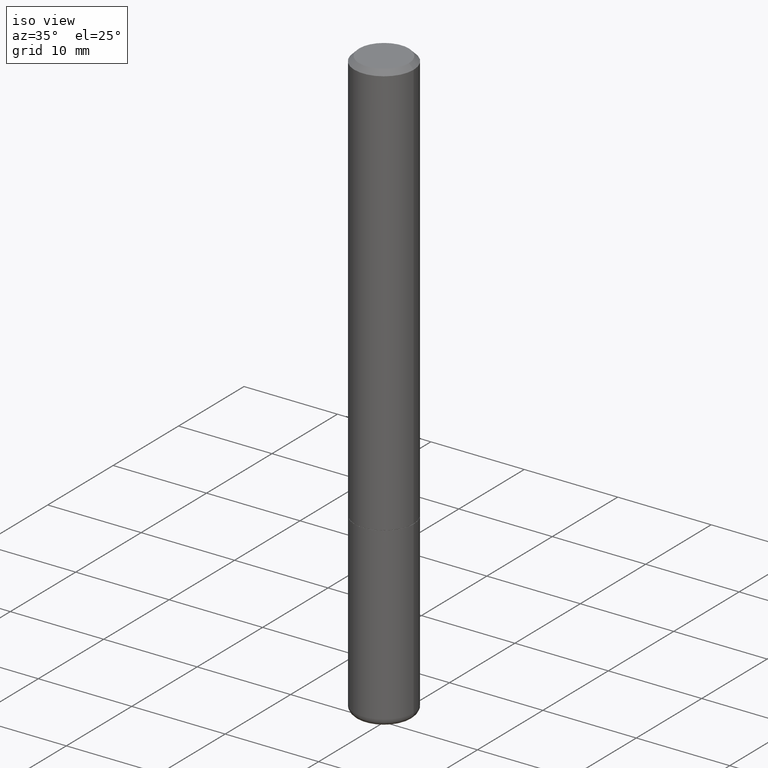
[diagram: clean part render]
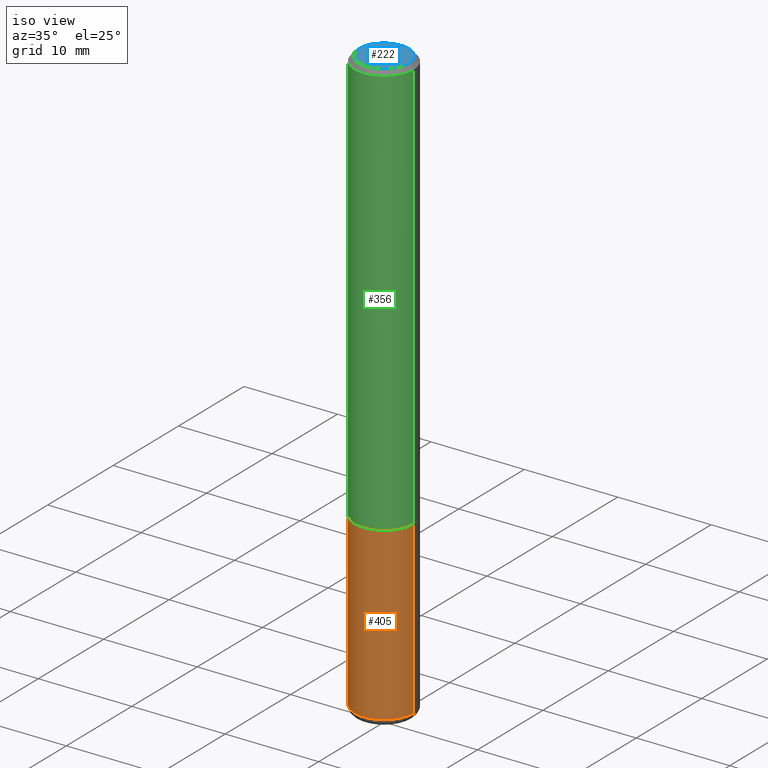
[diagram: same view with three faces highlighted in distinct colors, each labeled with its STEP entity id]
A machine part, iso view with three faces highlighted in distinct colors.
Their STEP definitions:

[orange] entity #405 — the highlighted cylindrical surface (edge-blend (fillet) strip) has radius 3.175 mm, axis along (-0, 0, 1).
#14 = CARTESIAN_POINT ( 'NONE',  ( 6.040307951277287977E-29, -8.623958906942569995E-15, -2.470000000000000195 ) ) ;
#16 = CARTESIAN_POINT ( 'NONE',  ( 4.279570410823989044E-29, -6.110092342975505460E-15, -1.750000000000000222 ) ) ;
#18 = EDGE_CURVE ( 'NONE', #108, #75, #74, .T. ) ;
#23 = CARTESIAN_POINT ( 'NONE',  ( -0.1250000000000000000, -6.478847205258913284E-15, -1.750000000000000222 ) ) ;
#34 = AXIS2_PLACEMENT_3D ( 'NONE', #14, #105, #401 ) ;
#45 = VERTEX_POINT ( 'NONE', #23 ) ;
#63 = AXIS2_PLACEMENT_3D ( 'NONE', #16, #171, #272 ) ;
#66 = LINE ( 'NONE', #162, #106 ) ;
#74 = CIRCLE ( 'NONE', #34, 0.1250000000000000000 ) ;
#75 = VERTEX_POINT ( 'NONE', #378 ) ;
#105 = DIRECTION ( 'NONE',  ( -2.445468806185136597E-29, 3.491481338843145583E-15, 1.000000000000000000 ) ) ;
#106 = VECTOR ( 'NONE', #223, 39.37007874015748143 ) ;
#108 = VERTEX_POINT ( 'NONE', #383 ) ;
#110 = FACE_OUTER_BOUND ( 'NONE', #305, .T. ) ;
#123 = LINE ( 'NONE', #320, #161 ) ;
#157 = EDGE_CURVE ( 'NONE', #45, #315, #412, .T. ) ;
#162 = CARTESIAN_POINT ( 'NONE',  ( 0.1250000000000000000, -8.728703347107833388E-16, 6.095220969744919741E-30 ) ) ;
#161 = VECTOR ( 'NONE', #379, 39.37007874015748143 ) ;
#171 = DIRECTION ( 'NONE',  ( -2.445468806185136597E-29, 3.491481338843145583E-15, 1.000000000000000000 ) ) ;
#205 = CYLINDRICAL_SURFACE ( 'NONE', #404, 0.1250000000000000000 ) ;
#223 = DIRECTION ( 'NONE',  ( -2.445468806185136877E-29, 3.491481338843145188E-15, 1.000000000000000000 ) ) ;
#234 = EDGE_CURVE ( 'NONE', #75, #315, #66, .T. ) ;
#247 = ORIENTED_EDGE ( 'NONE', *, *, #157, .F. ) ;
#272 = DIRECTION ( 'NONE',  ( 1.000000000000000000, -6.982962677686262766E-15, 0.000000000000000000 ) ) ;
#305 = EDGE_LOOP ( 'NONE', ( #406, #393, #409, #247 ) ) ;
#315 = VERTEX_POINT ( 'NONE', #330 ) ;
#320 = CARTESIAN_POINT ( 'NONE',  ( -0.1250000000000000000, 8.881784197001252323E-16, -6.148668862818632227E-30 ) ) ;
#330 = CARTESIAN_POINT ( 'NONE',  ( 0.1250000000000000000, -6.982962677686288010E-15, -1.750000000000000222 ) ) ;
#331 = DIRECTION ( 'NONE',  ( -2.445468806185136597E-29, 3.491481338843145583E-15, 1.000000000000000000 ) ) ;
#369 = EDGE_CURVE ( 'NONE', #108, #45, #123, .T. ) ;
#373 = CARTESIAN_POINT ( 'NONE',  ( 0.000000000000000000, 0.000000000000000000, 0.000000000000000000 ) ) ;
#378 = CARTESIAN_POINT ( 'NONE',  ( 0.1249999999999999861, -9.496829241653354912E-15, -2.470000000000000195 ) ) ;
#379 = DIRECTION ( 'NONE',  ( -2.445468806185136877E-29, 3.491481338843145188E-15, 1.000000000000000000 ) ) ;
#383 = CARTESIAN_POINT ( 'NONE',  ( -0.1249999999999999861, -7.735780487242444763E-15, -2.470000000000000195 ) ) ;
#393 = ORIENTED_EDGE ( 'NONE', *, *, #18, .T. ) ;
#394 = DIRECTION ( 'NONE',  ( 1.000000000000000000, -6.982962677686266711E-15, 4.876176775795935793E-29 ) ) ;
#401 = DIRECTION ( 'NONE',  ( 1.000000000000000000, -6.982962677686270655E-15, 0.000000000000000000 ) ) ;
#404 = AXIS2_PLACEMENT_3D ( 'NONE', #373, #331, #394 ) ;
#405 = ADVANCED_FACE ( 'NONE', ( #110 ), #205, .T. ) ;
#406 = ORIENTED_EDGE ( 'NONE', *, *, #369, .F. ) ;
#409 = ORIENTED_EDGE ( 'NONE', *, *, #234, .T. ) ;
#412 = CIRCLE ( 'NONE', #63, 0.1250000000000000000 ) ;

[blue] entity #222 — the highlighted planar face has unit normal (0, -0, -1).
#15 = CARTESIAN_POINT ( 'NONE',  ( 1.252621697202263706E-45, -1.788411804456536750E-31, -5.122214988120493535E-17 ) ) ;
#27 = CIRCLE ( 'NONE', #344, 0.1050000000000000377 ) ;
#67 = DIRECTION ( 'NONE',  ( -2.445468806185136597E-29, 3.491481338843145583E-15, 1.000000000000000000 ) ) ;
#76 = VERTEX_POINT ( 'NONE', #221 ) ;
#98 = FACE_OUTER_BOUND ( 'NONE', #279, .T. ) ;
#115 = DIRECTION ( 'NONE',  ( 1.000000000000000000, -6.982962677686267499E-15, 4.874400871621236533E-29 ) ) ;
#120 = ORIENTED_EDGE ( 'NONE', *, *, #384, .T. ) ;
#131 = DIRECTION ( 'NONE',  ( 1.000000000000000000, -6.982962677686267499E-15, 4.874400871621236533E-29 ) ) ;
#181 = DIRECTION ( 'NONE',  ( 2.438088387897960049E-29, -3.491481338843145188E-15, -1.000000000000000000 ) ) ;
#187 = DIRECTION ( 'NONE',  ( -1.000000000000000000, 6.982962677686265922E-15, -4.876176775795935793E-29 ) ) ;
#208 = ORIENTED_EDGE ( 'NONE', *, *, #299, .T. ) ;
#221 = CARTESIAN_POINT ( 'NONE',  ( -0.1050000000000000377, 7.681258945454890818E-16, -5.122214988121018004E-17 ) ) ;
#222 = ADVANCED_FACE ( 'NONE', ( #98 ), #229, .F. ) ;
#229 = PLANE ( 'NONE',  #328 ) ;
#279 = EDGE_LOOP ( 'NONE', ( #120, #208 ) ) ;
#299 = EDGE_CURVE ( 'NONE', #371, #76, #310, .T. ) ;
#310 = CIRCLE ( 'NONE', #417, 0.1050000000000000377 ) ;
#328 = AXIS2_PLACEMENT_3D ( 'NONE', #357, #181, #187 ) ;
#335 = DIRECTION ( 'NONE',  ( -2.445468806185136597E-29, 3.491481338843145583E-15, 1.000000000000000000 ) ) ;
#344 = AXIS2_PLACEMENT_3D ( 'NONE', #15, #335, #115 ) ;
#351 = CARTESIAN_POINT ( 'NONE',  ( 0.1050000000000000377, -8.238720831321576644E-16, -5.122214988119949344E-17 ) ) ;
#357 = CARTESIAN_POINT ( 'NONE',  ( 7.332110811570581229E-16, 0.1050000000000000377, -3.922166155191328542E-16 ) ) ;
#360 = CARTESIAN_POINT ( 'NONE',  ( 1.252621697202263706E-45, -1.788411804456536750E-31, -5.122214988120493535E-17 ) ) ;
#371 = VERTEX_POINT ( 'NONE', #351 ) ;
#384 = EDGE_CURVE ( 'NONE', #76, #371, #27, .T. ) ;
#417 = AXIS2_PLACEMENT_3D ( 'NONE', #360, #67, #131 ) ;

[green] entity #356 — the highlighted cylindrical surface (edge-blend (fillet) strip) has radius 3.175 mm, axis along (-0, 0, 1).
#12 = CIRCLE ( 'NONE', #255, 0.1250000000000001943 ) ;
#19 = ORIENTED_EDGE ( 'NONE', *, *, #380, .T. ) ;
#29 = LINE ( 'NONE', #354, #200 ) ;
#54 = DIRECTION ( 'NONE',  ( -2.445468806185136597E-29, 3.491481338843145583E-15, 1.000000000000000000 ) ) ;
#60 = EDGE_CURVE ( 'NONE', #174, #368, #29, .T. ) ;
#68 = AXIS2_PLACEMENT_3D ( 'NONE', #347, #54, #180 ) ;
#81 = DIRECTION ( 'NONE',  ( 1.000000000000000000, -6.982962677686267499E-15, 0.000000000000000000 ) ) ;
#88 = ORIENTED_EDGE ( 'NONE', *, *, #215, .T. ) ;
#103 = VERTEX_POINT ( 'NONE', #188 ) ;
#121 = CARTESIAN_POINT ( 'NONE',  ( -0.1249999999999999584, 8.030407079339200406E-16, -0.02000000000000006287 ) ) ;
#139 = ORIENTED_EDGE ( 'NONE', *, *, #60, .F. ) ;
#152 = DIRECTION ( 'NONE',  ( -2.445468806185136597E-29, 3.491481338843145583E-15, 1.000000000000000000 ) ) ;
#174 = VERTEX_POINT ( 'NONE', #237 ) ;
#179 = VERTEX_POINT ( 'NONE', #390 ) ;
#180 = DIRECTION ( 'NONE',  ( 1.000000000000000000, -6.982962677686267499E-15, 0.000000000000000000 ) ) ;
#184 = CARTESIAN_POINT ( 'NONE',  ( 4.277124942017804562E-29, -6.106600861636661664E-15, -1.749000000000000110 ) ) ;
#188 = CARTESIAN_POINT ( 'NONE',  ( 0.1250000000000001943, -6.979471196347446580E-15, -1.749000000000000110 ) ) ;
#189 = DIRECTION ( 'NONE',  ( -2.445468806185136877E-29, 3.491481338843145188E-15, 1.000000000000000000 ) ) ;
#197 = CIRCLE ( 'NONE', #68, 0.1249999999999999584 ) ;
#200 = VECTOR ( 'NONE', #189, 39.37007874015748143 ) ;
#210 = VECTOR ( 'NONE', #388, 39.37007874015748143 ) ;
#215 = EDGE_CURVE ( 'NONE', #103, #179, #327, .T. ) ;
#218 = CYLINDRICAL_SURFACE ( 'NONE', #250, 0.1250000000000000555 ) ;
#237 = CARTESIAN_POINT ( 'NONE',  ( -0.1250000000000001943, -2.200036824506633304E-15, -1.749000000000000110 ) ) ;
#250 = AXIS2_PLACEMENT_3D ( 'NONE', #346, #288, #415 ) ;
#255 = AXIS2_PLACEMENT_3D ( 'NONE', #184, #152, #81 ) ;
#259 = CARTESIAN_POINT ( 'NONE',  ( 0.1250000000000000555, -8.728703347107838319E-16, 6.095220969744923244E-30 ) ) ;
#264 = EDGE_CURVE ( 'NONE', #368, #179, #197, .T. ) ;
#282 = EDGE_LOOP ( 'NONE', ( #139, #19, #88, #349 ) ) ;
#284 = FACE_OUTER_BOUND ( 'NONE', #282, .T. ) ;
#288 = DIRECTION ( 'NONE',  ( -2.445468806185136597E-29, 3.491481338843145583E-15, 1.000000000000000000 ) ) ;
#327 = LINE ( 'NONE', #259, #210 ) ;
#346 = CARTESIAN_POINT ( 'NONE',  ( 0.000000000000000000, 0.000000000000000000, 0.000000000000000000 ) ) ;
#347 = CARTESIAN_POINT ( 'NONE',  ( 4.890937612370288923E-31, -6.982962677686312563E-17, -0.02000000000000006287 ) ) ;
#349 = ORIENTED_EDGE ( 'NONE', *, *, #264, .F. ) ;
#354 = CARTESIAN_POINT ( 'NONE',  ( -0.1250000000000000555, 8.881784197001256268E-16, -6.148668862818635730E-30 ) ) ;
#356 = ADVANCED_FACE ( 'NONE', ( #284 ), #218, .T. ) ;
#368 = VERTEX_POINT ( 'NONE', #121 ) ;
#380 = EDGE_CURVE ( 'NONE', #174, #103, #12, .T. ) ;
#388 = DIRECTION ( 'NONE',  ( -2.445468806185136877E-29, 3.491481338843145188E-15, 1.000000000000000000 ) ) ;
#390 = CARTESIAN_POINT ( 'NONE',  ( 0.1249999999999999584, -9.273918764983043491E-16, -0.02000000000000006287 ) ) ;
#415 = DIRECTION ( 'NONE',  ( 1.000000000000000000, -6.982962677686267499E-15, 4.876176775795936353E-29 ) ) ;